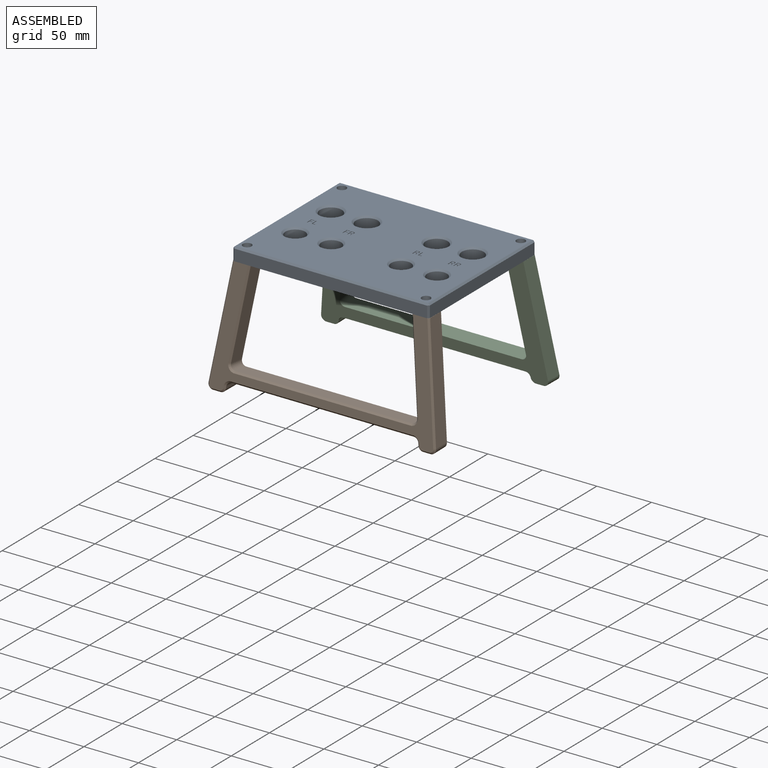
[diagram: assembled view]
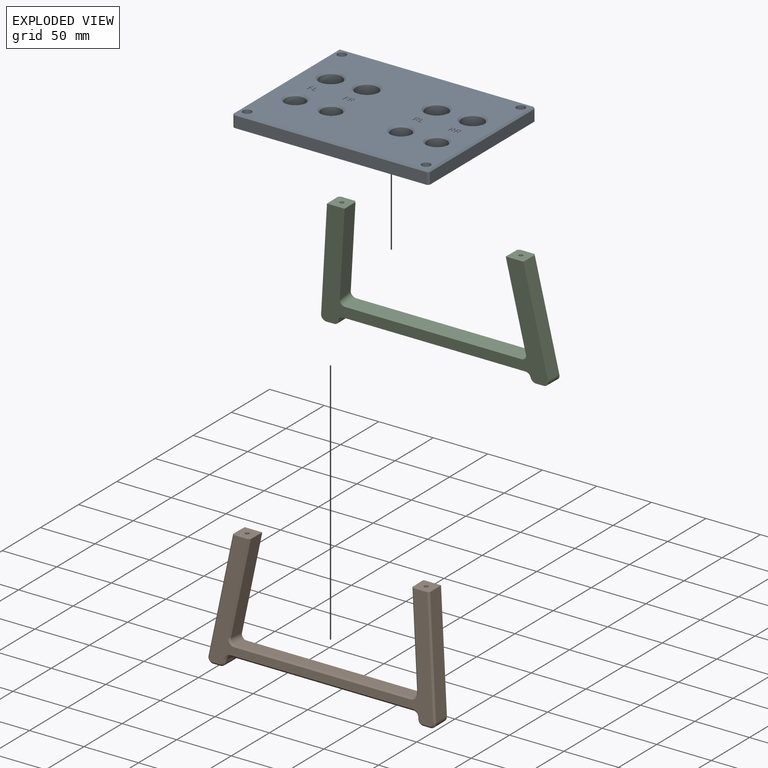
[diagram: exploded view]
GUIDED TOUR — MATED ASSEMBLY (Onshape document 4ecbc5e7c4a89913e7f34ffc, AutoMate assembly 4ecbc5e7c4a89913e7f34ffc_de8657f2582dbb8c1707cd7d_149b2c7a44bfe44373a64f64_default)

This assembly has 3 components, labeled P0..P2 below (a component is one placed occurrence of a part; the same part can appear more than once), held together by 2 mates. A mate is a constraint between two components; its type names the relative motion it leaves free:
  FASTENED — locks the two components together rigidly (no relative motion).
Axis/direction vectors are unit vectors and 'through' points are millimeter coordinates, both in the assembly's world frame.

MATES
  1. FASTENED "Fastened 1": P0 <-> P2, direction (0.000, 0.000, -1.000) through (-82.00, 62.00, -12.00) mm
  2. FASTENED "Fastened 2": P0 <-> P1, direction (0.000, 0.000, -1.000) through (-82.00, -62.00, -12.00) mm

ASSEMBLY ORDER
  1. P2 — the base component [order verified]
  2. P1 [order verified]
  3. P0 [order verified]
Order-tag legend:
  [order verified] — this step's position reverses a verified removal order: the component was checked to insert without passing through the ones already placed.

Of the 3 components, 2 carry the full construction recipe — the FeatureScript program that regenerates the part's solid from scratch; the rest are supplied as boundary geometry only.
Each toured component is shown spotlighted twice — in the assembled view, then in the exploded view, where a leader line traces a displaced component back to its assembled socket (saturated green if recipe-attached, orange if geometry-only; every other component desaturated gray) — followed by its recipe or geometry summary and the mates that hold it.
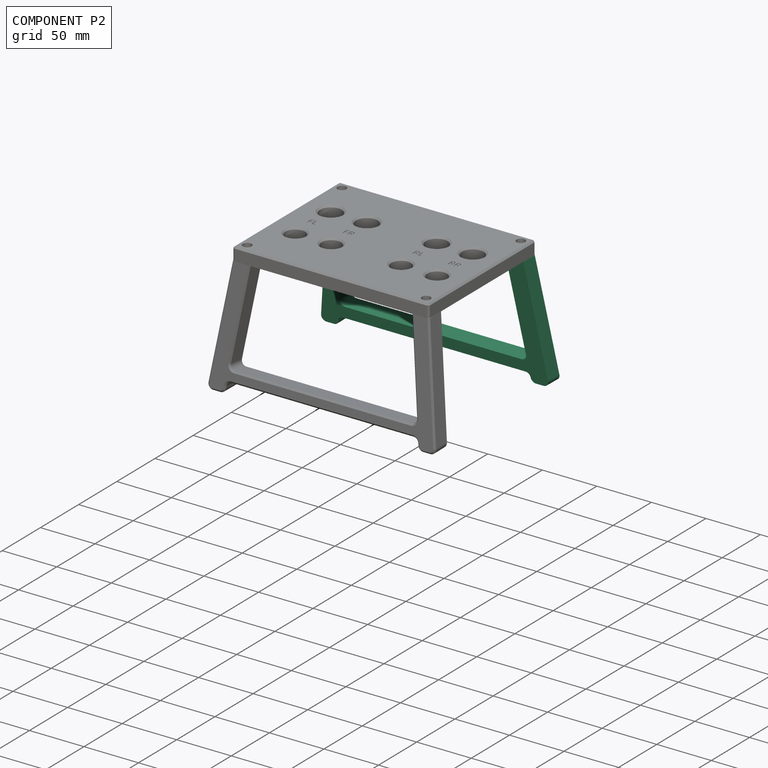
[diagram: component P2 — assembled]
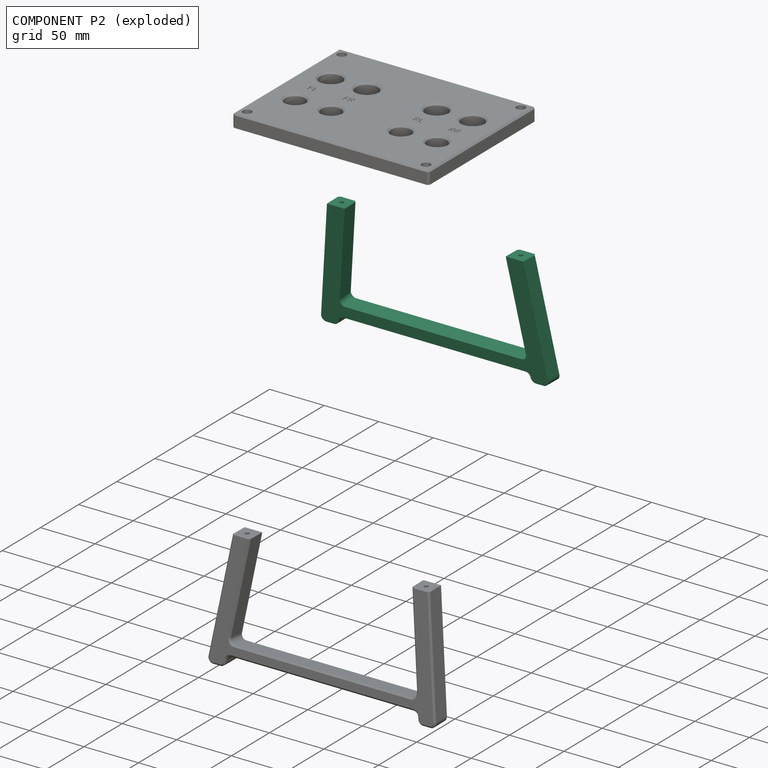
[diagram: component P2 — exploded]
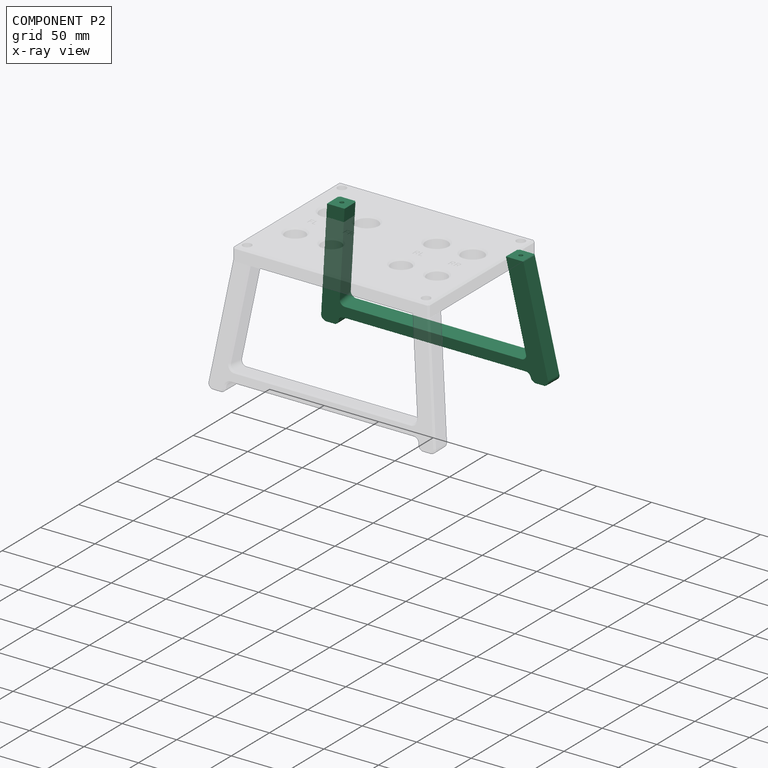
[diagram: component P2 — x-ray view]
COMPONENT P2 — same part as P1 (CADFS 00603712); its construction recipe is shown at P1.
Held by: FASTENED mate "Fastened 1" to P0.
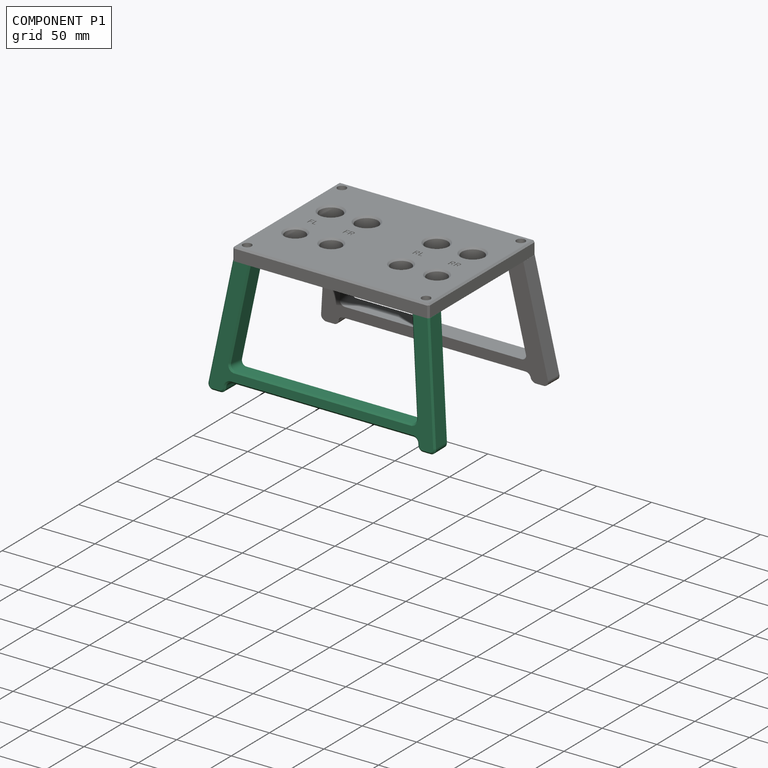
[diagram: component P1 — assembled]
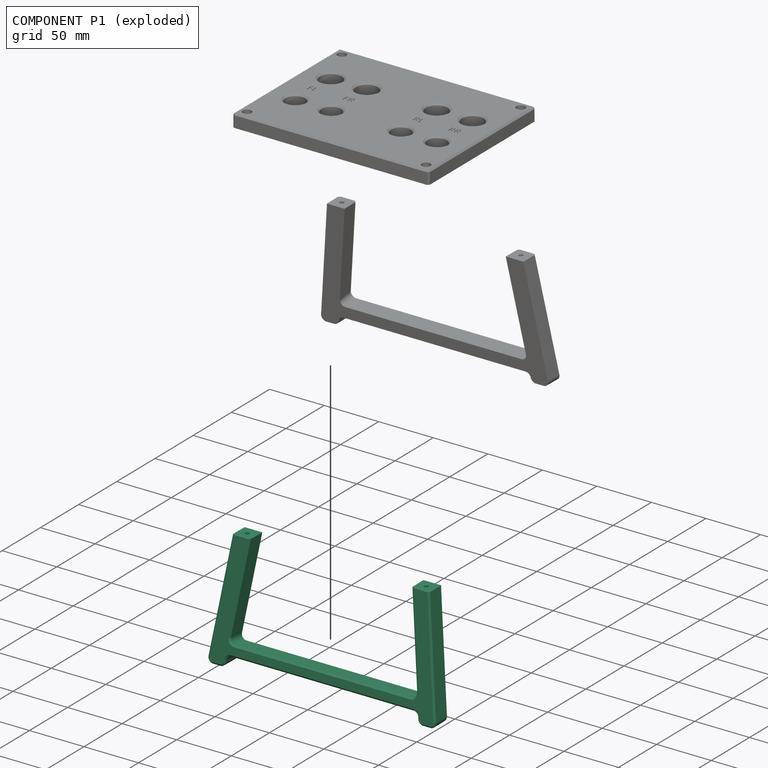
[diagram: component P1 — exploded]
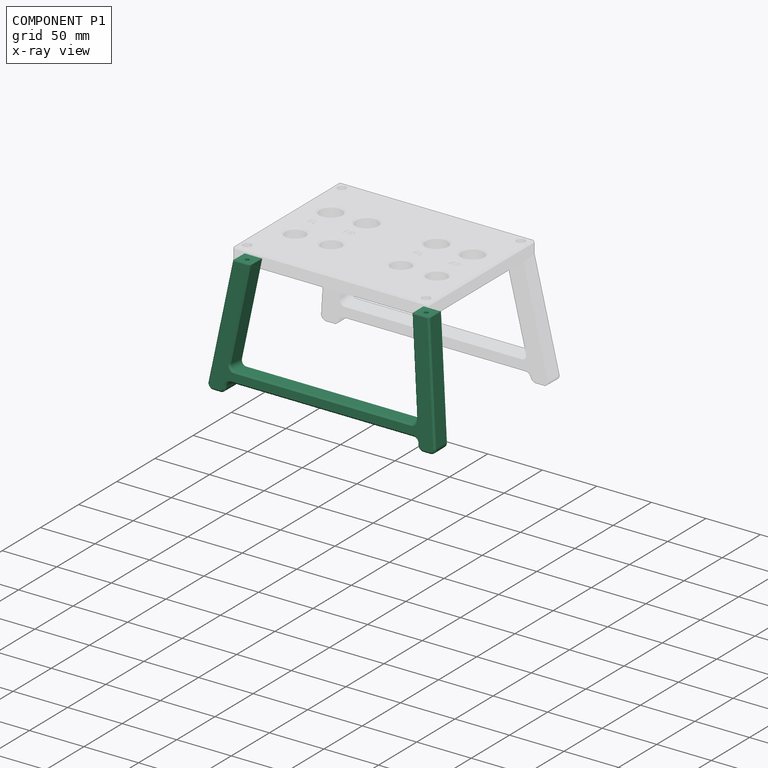
[diagram: component P1 — x-ray view]
COMPONENT P1 — recipe-attached (CADFS 00603712, mesh-verified: the recipe's output STEP matches this component's geometry to below the mesh-comparison resolution (tessellation chordal tolerance ~0.353 mm)).
Held by: FASTENED mate "Fastened 2" to P0.
Construction recipe (FeatureScript — the CAD program that rebuilds this solid; sketch coordinates are in the units given by the * unit suffixes, e.g. mm):

FeatureScript 1511;
import(path : "onshape/std/geometry.fs", version : "1511.0");
import(path : "onshape/std/common.fs", version : "1511.0");
const mm = millimeter;
const VERTEX = EntityType.VERTEX;
const EDGE = EntityType.EDGE;
const FACE = EntityType.FACE;
const BODY = EntityType.BODY;
function v(x, y){return vector(x, y);}
function OD(order){return orderDisambiguation(order);}
function OSD(set){return originalSetDisambiguation(set);}
function TD(topology){return topologyDisambiguation(topology);}
function TDD(query){return trueDependencyDisambiguation(query);}
function sQuery(a, b, c) {return sketchEntityQuery(a, b, c);}

annotation { "Feature Type Name" : "Feature", "Feature Type Description" : "" }
export const myFeature = defineFeature(function(context is Context, id is Id, definition is map)
    precondition{}
    {
        {
            var Q0;
            Q0=qCreatedBy(makeId("Top.planeOp"),FACE);
            var sketch = newSketch(context, id + "F0", { "sketchPlane" : qUnion([Q0])});
            skLineSegment(sketch, "E0", {"start": v(0, 0) * mm, "end": v(0, 135) * mm, "construction": true});
            skLineSegment(sketch, "E1", {"start": v(-105, 0) * mm, "end": v(-90, 108) * mm});
            skLineSegment(sketch, "E2", {"start": v(-90, 108) * mm, "end": v(-73.85, 108) * mm});
            skLineSegment(sketch, "E3", {"start": v(-73.85, 108) * mm, "end": v(-86.07, 20) * mm});
            skLineSegment(sketch, "E4", {"start": v(0, 10) * mm, "end": v(-87.46, 10) * mm});
            skLineSegment(sketch, "E5", {"start": v(0, 20) * mm, "end": v(-86.07, 20) * mm});
            skLineSegment(sketch, "E6", {"start": v(-105, 0) * mm, "end": v(-88.85, 0) * mm});
            skLineSegment(sketch, "E7.trimOffspring", {"start": v(-87.46, 10) * mm, "end": v(-88.85, 0) * mm});
            skLineSegment(sketch, "E8.MirrorCS", {"start": v(90, 108) * mm, "end": v(73.85, 108) * mm});
            skLineSegment(sketch, "E9.MirrorCS", {"start": v(105, 0) * mm, "end": v(90, 108) * mm});
            skLineSegment(sketch, "E10.MirrorCS", {"start": v(87.46, 10) * mm, "end": v(88.85, 0) * mm});
            skLineSegment(sketch, "E11.MirrorCS", {"start": v(0, 10) * mm, "end": v(87.46, 10) * mm});
            skLineSegment(sketch, "E12.MirrorCS", {"start": v(0, 20) * mm, "end": v(86.07, 20) * mm});
            skLineSegment(sketch, "E13.MirrorCS", {"start": v(73.85, 108) * mm, "end": v(86.07, 20) * mm});
            skLineSegment(sketch, "E14.MirrorCS", {"start": v(105, 0) * mm, "end": v(88.85, 0) * mm});
            skSolve(sketch);
        }
        {
            var Q0;
            Q0 = qSketchRegion(id + "F0", true);
            extrude(context, id + "F1", {"entities" : qUnion([Q0]), "endBound" : BoundingType.SYMMETRIC, "depth" : 16 * mm, "offsetDistance" : 25 * mm});
        }
        {
            var Q0;
            Q0=qCreatedBy(makeId("Right.planeOp"),FACE);
            var sketch = newSketch(context, id + "F2", { "sketchPlane" : qUnion([Q0])});
            skLineSegment(sketch, "E15", {"start": v(0, 0) * mm, "end": v(88.44, 0) * mm, "construction": true});
            skLineSegment(sketch, "E16", {"start": v(0, 0) * mm, "end": v(0, 8) * mm});
            skLineSegment(sketch, "E17", {"start": v(0, 8) * mm, "end": v(1.96, 8) * mm});
            skLineSegment(sketch, "E18", {"start": v(1.96, 8) * mm, "end": v(0, -8) * mm});
            skLineSegment(sketch, "E19", {"start": v(0, -8) * mm, "end": v(0, 0) * mm});
            skLineSegment(sketch, "E20", {"start": v(108, 0) * mm, "end": v(108, -8) * mm});
            skLineSegment(sketch, "E21", {"start": v(108, -8) * mm, "end": v(106.04, -8) * mm});
            skLineSegment(sketch, "E22", {"start": v(108, 0) * mm, "end": v(108, 8) * mm});
            skLineSegment(sketch, "E23", {"start": v(108, 8) * mm, "end": v(106.04, -8) * mm});
            skSolve(sketch);
        }
        {
            var Q0;
            Q0 = qSketchRegion(id + "F2", true);
            extrude(context, id + "F3", {"entities" : qUnion([Q0]), "operationType" : NewBodyOperationType.REMOVE, "endBound" : BoundingType.SYMMETRIC, "oppositeDirection" : true, "depth" : 500 * mm, "offsetDistance" : 25 * mm});
        }
        {
            var Q0;
            {var subQ5=sQuery(id+"F0.wireOp",EDGE,"E9.MirrorCS");Q0=makeQuery(id+"F3.boolean.opBoolean","COPY",FACE,{"disambiguationData":[TD([makeQuery(id+"F1.opExtrude","SWEPT_FACE",FACE,{"disambiguationData":[OSD([subQ5])]})])],"derivedFrom":makeQuery(id+"F3.opExtrude","SWEPT_FACE",FACE,{"disambiguationData":[OSD([sQuery(id+"F2.wireOp",EDGE,"E23")])]})});}
            var sketch = newSketch(context, id + "F4", { "sketchPlane" : qUnion([Q0])});
            skPoint(sketch, "E24", {"position": v(-82, 12.98) * mm});
            skPoint(sketch, "E25", {"position": v(82, 12.98) * mm});
            skSolve(sketch);
        }
        {
            var Q0;
            Q0=sQuery(id+"F4.wireOp",VERTEX,"E24");
            var Q1;
            Q1=sQuery(id+"F4.wireOp",VERTEX,"E25");
            var Q2;
            Q2=makeQuery(id+"F1.opExtrude","SWEPT_BODY",BODY,{"disambiguationData":[OSD([sQuery(id+"F0.wireOp",EDGE,"E1"),sQuery(id+"F0.wireOp",EDGE,"E2"),sQuery(id+"F0.wireOp",EDGE,"E3"),sQuery(id+"F0.wireOp",EDGE,"E4"),sQuery(id+"F0.wireOp",EDGE,"E5"),sQuery(id+"F0.wireOp",EDGE,"E6"),sQuery(id+"F0.wireOp",EDGE,"E7.trimOffspring"),sQuery(id+"F0.wireOp",EDGE,"E8.MirrorCS"),sQuery(id+"F0.wireOp",EDGE,"E9.MirrorCS"),sQuery(id+"F0.wireOp",EDGE,"E10.MirrorCS"),sQuery(id+"F0.wireOp",EDGE,"E11.MirrorCS"),sQuery(id+"F0.wireOp",EDGE,"E12.MirrorCS"),sQuery(id+"F0.wireOp",EDGE,"E13.MirrorCS"),sQuery(id+"F0.wireOp",EDGE,"E14.MirrorCS")])]});
            hole(context, id + "F5", {"style" : HoleStyle.SIMPLE, "endStyle" : HoleEndStyle.BLIND, "holeDiameter" : 3.8 * mm, "majorDiameter" : 5 * mm, "holeDepth" : 20 * mm, "isTappedThrough" : true, "tappedDepth" : 12 * mm, "tapClearance" : 3, "startFromSketch" : true, "locations" : qUnion([Q0, Q1]), "scope" : qUnion([Q2])});
        }
        {
            var Q0;
            Q0=makeQuery(id+"F1.opExtrude","SWEPT_EDGE",EDGE,{"disambiguationData":[OSD([sQuery(id+"F0.wireOp",EDGE,"E12.MirrorCS"),sQuery(id+"F0.wireOp",EDGE,"E13.MirrorCS")])]});
            var Q1;
            Q1=makeQuery(id+"F1.opExtrude","SWEPT_EDGE",EDGE,{"disambiguationData":[OSD([sQuery(id+"F0.wireOp",EDGE,"E10.MirrorCS"),sQuery(id+"F0.wireOp",EDGE,"E11.MirrorCS")])]});
            var Q2;
            Q2=makeQuery(id+"F3.boolean.opBoolean","INTERSECT",EDGE,{"derivedFrom":[makeQuery(id+"F1.opExtrude","SWEPT_FACE",FACE,{"disambiguationData":[OSD([sQuery(id+"F0.wireOp",EDGE,"E9.MirrorCS")])]}),makeQuery(id+"F3.opExtrude","SWEPT_FACE",FACE,{"disambiguationData":[OSD([sQuery(id+"F2.wireOp",EDGE,"E18")])]})]});
            var Q3;
            Q3=makeQuery(id+"F3.boolean.opBoolean","INTERSECT",EDGE,{"derivedFrom":[makeQuery(id+"F1.opExtrude","SWEPT_FACE",FACE,{"disambiguationData":[OSD([sQuery(id+"F0.wireOp",EDGE,"E10.MirrorCS")])]}),makeQuery(id+"F3.opExtrude","SWEPT_FACE",FACE,{"disambiguationData":[OSD([sQuery(id+"F2.wireOp",EDGE,"E18")])]})]});
            var Q4;
            Q4=makeQuery(id+"F1.opExtrude","SWEPT_EDGE",EDGE,{"disambiguationData":[OSD([sQuery(id+"F0.wireOp",EDGE,"E4"),sQuery(id+"F0.wireOp",EDGE,"E7.trimOffspring")])]});
            var Q5;
            Q5=makeQuery(id+"F3.boolean.opBoolean","INTERSECT",EDGE,{"derivedFrom":[makeQuery(id+"F1.opExtrude","SWEPT_FACE",FACE,{"disambiguationData":[OSD([sQuery(id+"F0.wireOp",EDGE,"E7.trimOffspring")])]}),makeQuery(id+"F3.opExtrude","SWEPT_FACE",FACE,{"disambiguationData":[OSD([sQuery(id+"F2.wireOp",EDGE,"E18")])]})]});
            var Q6;
            Q6=makeQuery(id+"F3.boolean.opBoolean","INTERSECT",EDGE,{"derivedFrom":[makeQuery(id+"F1.opExtrude","SWEPT_FACE",FACE,{"disambiguationData":[OSD([sQuery(id+"F0.wireOp",EDGE,"E1")])]}),makeQuery(id+"F3.opExtrude","SWEPT_FACE",FACE,{"disambiguationData":[OSD([sQuery(id+"F2.wireOp",EDGE,"E18")])]})]});
            var Q7;
            Q7=makeQuery(id+"F1.opExtrude","SWEPT_EDGE",EDGE,{"disambiguationData":[OSD([sQuery(id+"F0.wireOp",EDGE,"E3"),sQuery(id+"F0.wireOp",EDGE,"E5")])]});
            fillet(context, id + "F6", {"entities" : qUnion([Q0, Q1, Q2, Q3, Q4, Q5, Q6, Q7]), "tangentPropagation" : true, "radius" : 4.6 * mm, "defaultsChanged" : true, "vertexSettings" : [], "allowEdgeOverflow" : false});
        }
        {
            var Q0;
            Q0=makeQuery(id+"F1.opExtrude","CAP_EDGE",EDGE,{"disambiguationData":[OSD([sQuery(id+"F0.wireOp",EDGE,"E5"),sQuery(id+"F0.wireOp",EDGE,"E12.MirrorCS")])],"isStart":true});
            var Q1;
            Q1=makeQuery(id+"F1.opExtrude","CAP_EDGE",EDGE,{"disambiguationData":[OSD([sQuery(id+"F0.wireOp",EDGE,"E4"),sQuery(id+"F0.wireOp",EDGE,"E11.MirrorCS")])],"isStart":true});
            chamfer(context, id + "F7", {"entities" : qUnion([Q0, Q1]), "width" : 1.5 * mm, "tangentPropagation" : true});
        }
    });
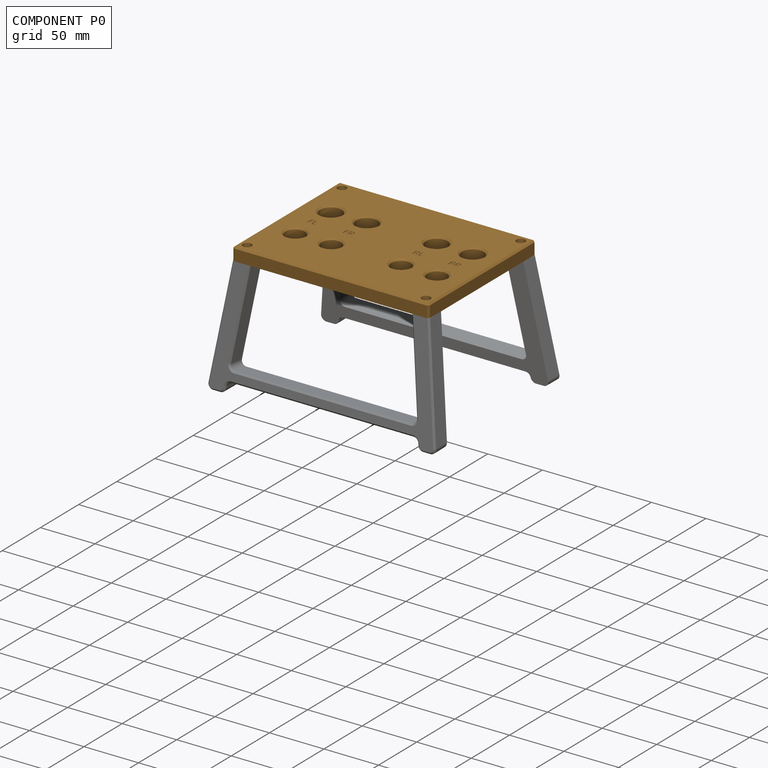
[diagram: component P0 — assembled]
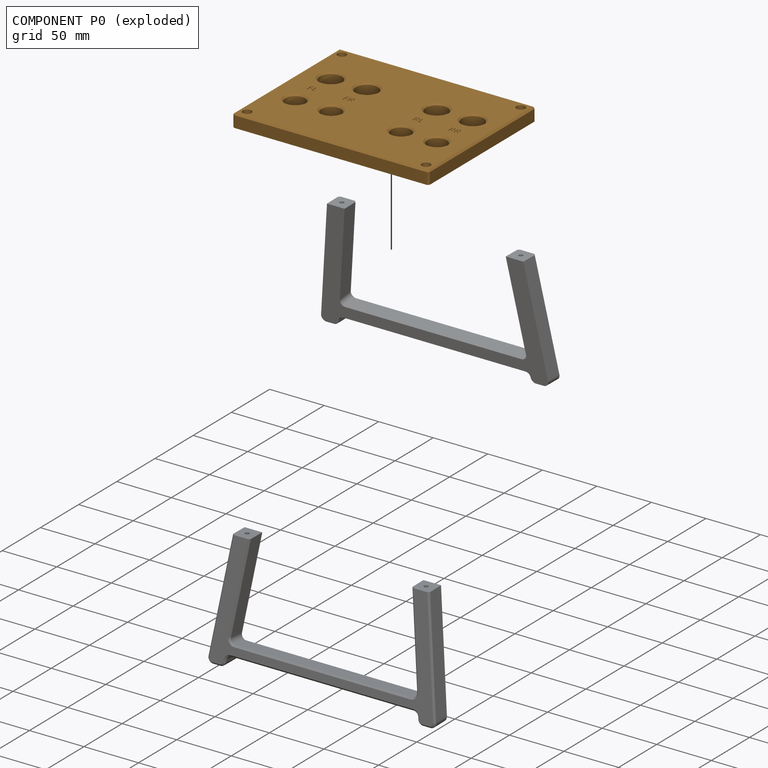
[diagram: component P0 — exploded]
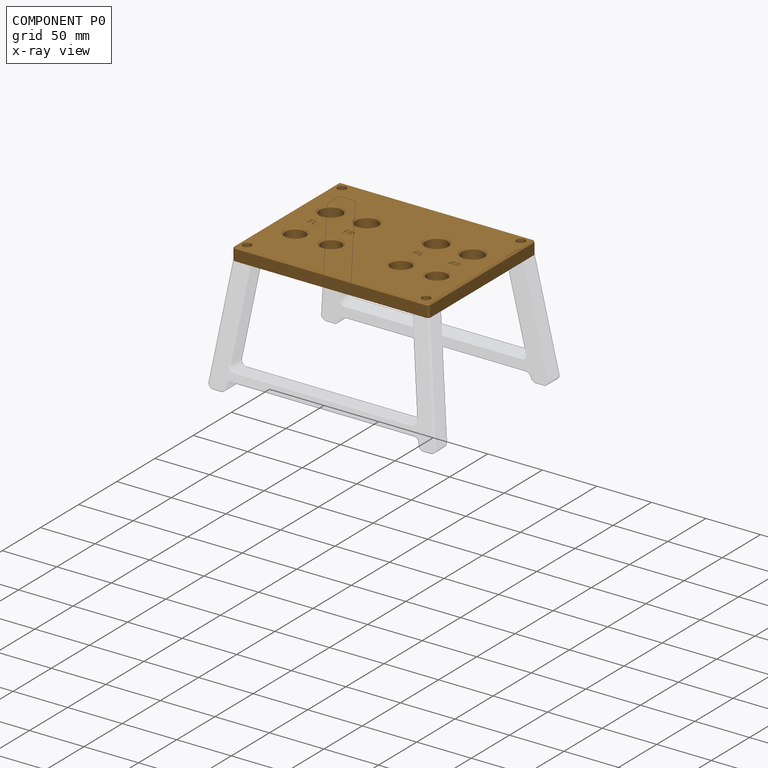
[diagram: component P0 — x-ray view]
COMPONENT P0 — geometry summary (no construction recipe available for this part):
  bounding box: 180.0 x 140.0 x 12.0 mm
  B-rep topology: 1 solid, 162 faces, 824 edges
  volume: 272314 mm^3 (90% of its bounding box)
  symmetry: 2-fold rotationally symmetric about the z axis; mirror-symmetric across its x mid-plane, y mid-plane
Held by: FASTENED mate "Fastened 1" to P2; FASTENED mate "Fastened 2" to P1.
PROVENANCE & LICENSES
Assembly (occurrences, transforms, mates, per-part STEP geometry): AutoMate dataset, Zenodo record 7776208, CC0.
Construction recipes: CADFS (HuggingFace VladPyatov/CADFS, CC-BY-4.0, layered over the ABC dataset), FeatureScript reconstruction programs keyed by ABC model id.
Join: ABC meta listings map ABC model id -> Onshape documentId; within a shared document, parts are matched by geometric signature (bounding-box dims + volume at 0.1% relative tolerance, exact B-rep face/solid counts).
Verification: 2 of this assembly's 3 components carry a recipe attachment, and every attachment is mesh-verified: the CADFS STEP and the AutoMate member STEP were compared as meshes in their shared local frame (symmetric sampled-point-to-mesh distance); worst across the 2 attachments: below the mesh-comparison resolution (tessellation chordal tolerance ~0.353 mm) on a 235 mm part.
Renders: orthographic iso camera (az 35 / el 25); the floor grid conveys scale (grid pitch printed in each image; no ruler). In the exploded view each component is displaced by its stored offset vector: the offsets alone carry the explosion direction (mate normal/axis signs are not orientation cues and do not encode it), and separation distances are assigned per mate-chain, not proportionally to assembly-order depth.
